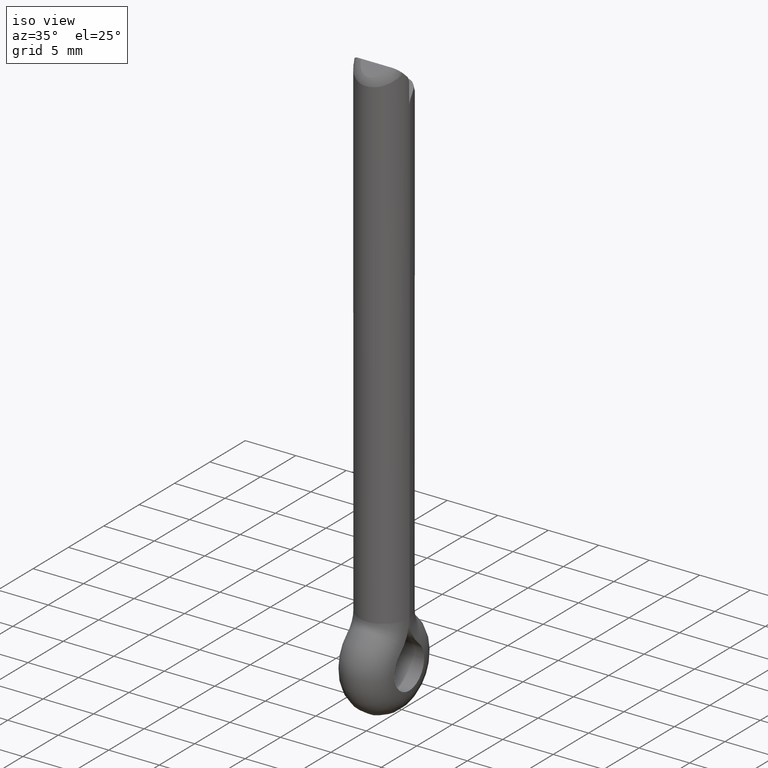
[diagram: clean part render]
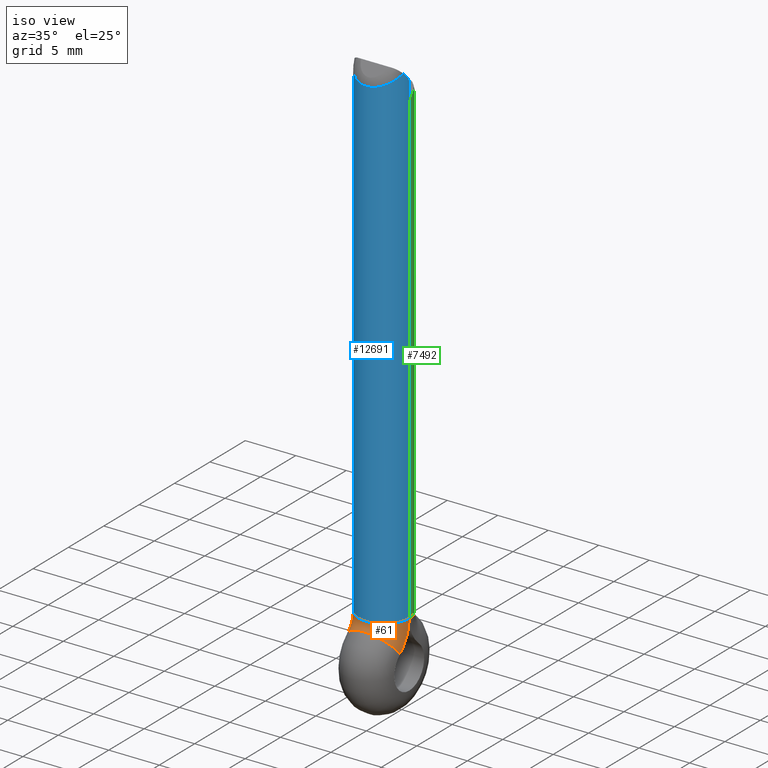
[diagram: same view with three faces highlighted in distinct colors, each labeled with its STEP entity id]
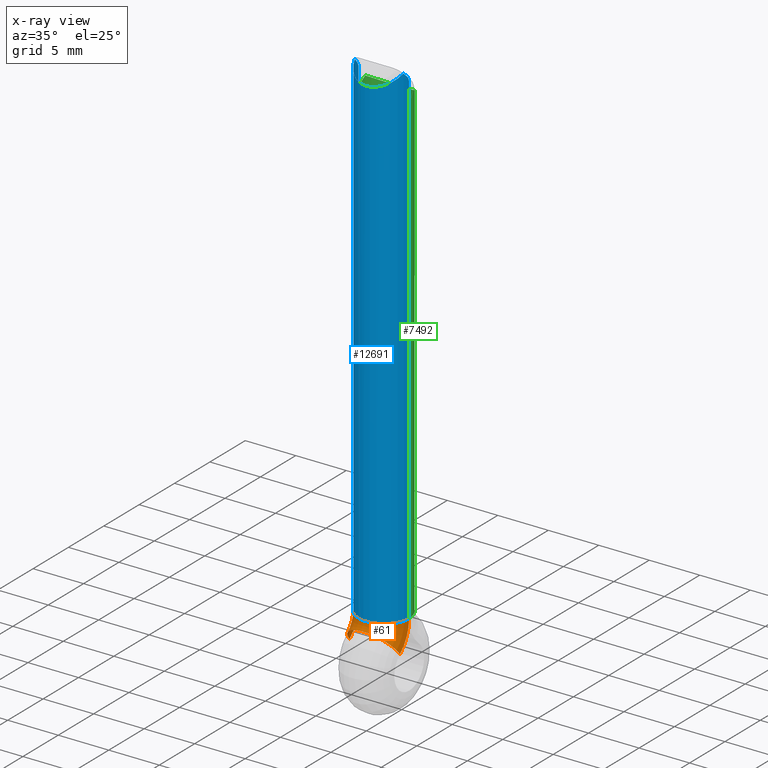
[diagram: x-ray of the same camera — body ghosted, the three highlighted faces saturated]
A machine part, iso view with three faces highlighted in distinct colors.
The next image is the same camera in x-ray (body ghosted, the three faces saturated) — at least one of them is partly hidden behind the body in this view.
Their STEP definitions:

[orange] entity #61 — the highlighted toroidal blend (fillet) surface has major radius 3.5 mm and minor (blend) radius 2.5 mm.
#61 = ADVANCED_FACE ( 'NONE', ( #11513 ), #279, .T. ) ;
#226 = EDGE_LOOP ( 'NONE', ( #14373, #13537, #14516, #1776 ) ) ;
#279 = TOROIDAL_SURFACE ( 'NONE', #13577, 3.500000000000003600, 2.500000000000000000 ) ;
#608 = CARTESIAN_POINT ( 'NONE',  ( -2.499979999919999400, -5.999999999999999100, -47.48984831638268400 ) ) ;
#1224 = VERTEX_POINT ( 'NONE', #10689 ) ;
#1776 = ORIENTED_EDGE ( 'NONE', *, *, #6703, .F. ) ;
#2296 = CARTESIAN_POINT ( 'NONE',  ( 0.0000000000000000000, -3.812499999999982700, -50.22203494068197200 ) ) ;
#2401 = DIRECTION ( 'NONE',  ( 1.000000000000000000, 0.0000000000000000000, 0.0000000000000000000 ) ) ;
#2456 = VERTEX_POINT ( 'NONE', #5722 ) ;
#3129 = DIRECTION ( 'NONE',  ( 1.000000000000000000, 0.0000000000000000000, 0.0000000000000000000 ) ) ;
#3191 = CARTESIAN_POINT ( 'NONE',  ( -2.499979999919999400, -2.509999999999998500, -47.48984831638266300 ) ) ;
#3539 = DIRECTION ( 'NONE',  ( 0.0000000000000000000, 0.0000000000000000000, -1.000000000000000000 ) ) ;
#3825 = AXIS2_PLACEMENT_3D ( 'NONE', #608, #3129, #9701 ) ;
#4124 = CARTESIAN_POINT ( 'NONE',  ( 2.499979999919999400, -2.509999999999998500, -47.48984831638266300 ) ) ;
#4719 = DIRECTION ( 'NONE',  ( 1.000000000000000000, 0.0000000000000000000, 0.0000000000000000000 ) ) ;
#4744 = AXIS2_PLACEMENT_3D ( 'NONE', #2296, #4923, #2401 ) ;
#4923 = DIRECTION ( 'NONE',  ( 0.0000000000000000000, -0.7806247497998088900, -0.6249999999999886800 ) ) ;
#5147 = EDGE_CURVE ( 'NONE', #2456, #12746, #15382, .T. ) ;
#5480 = CARTESIAN_POINT ( 'NONE',  ( 0.0000000000000000000, -5.999999999999999100, -47.48984831638268400 ) ) ;
#5722 = CARTESIAN_POINT ( 'NONE',  ( 2.499979999919999400, -3.818749999999974800, -50.21422869318397600 ) ) ;
#6479 = AXIS2_PLACEMENT_3D ( 'NONE', #12045, #13327, #14616 ) ;
#6701 = VERTEX_POINT ( 'NONE', #3191 ) ;
#6703 = EDGE_CURVE ( 'NONE', #1224, #6701, #15755, .T. ) ;
#7840 = DIRECTION ( 'NONE',  ( 0.0000000000000000000, 0.0000000000000000000, -1.000000000000000000 ) ) ;
#9057 = EDGE_CURVE ( 'NONE', #2456, #1224, #14701, .T. ) ;
#9701 = DIRECTION ( 'NONE',  ( 0.0000000000000000000, 0.0000000000000000000, -1.000000000000000000 ) ) ;
#10689 = CARTESIAN_POINT ( 'NONE',  ( -2.499979999919999400, -3.818749999999974800, -50.21422869318397600 ) ) ;
#11088 = EDGE_CURVE ( 'NONE', #12746, #6701, #15473, .T. ) ;
#11103 = CARTESIAN_POINT ( 'NONE',  ( 2.499979999919999400, -5.999999999999999100, -47.48984831638268400 ) ) ;
#11513 = FACE_OUTER_BOUND ( 'NONE', #226, .T. ) ;
#11640 = AXIS2_PLACEMENT_3D ( 'NONE', #11103, #4719, #3539 ) ;
#12045 = CARTESIAN_POINT ( 'NONE',  ( 0.0000000000000000000, -2.499999999999995100, -47.48984831638267000 ) ) ;
#12746 = VERTEX_POINT ( 'NONE', #4124 ) ;
#13327 = DIRECTION ( 'NONE',  ( 0.0000000000000000000, -1.598721155460225400E-014, -1.000000000000000000 ) ) ;
#13537 = ORIENTED_EDGE ( 'NONE', *, *, #5147, .T. ) ;
#13577 = AXIS2_PLACEMENT_3D ( 'NONE', #5480, #14443, #7840 ) ;
#14373 = ORIENTED_EDGE ( 'NONE', *, *, #9057, .F. ) ;
#14443 = DIRECTION ( 'NONE',  ( 1.000000000000000000, 0.0000000000000000000, 0.0000000000000000000 ) ) ;
#14516 = ORIENTED_EDGE ( 'NONE', *, *, #11088, .T. ) ;
#14616 = DIRECTION ( 'NONE',  ( 1.000000000000000000, 0.0000000000000000000, 0.0000000000000000000 ) ) ;
#14701 = CIRCLE ( 'NONE', #4744, 2.500000000000000000 ) ;
#15382 = CIRCLE ( 'NONE', #11640, 3.490000000000006900 ) ;
#15473 = CIRCLE ( 'NONE', #6479, 2.500000000000000000 ) ;
#15755 = CIRCLE ( 'NONE', #3825, 3.490000000000006900 ) ;

[blue] entity #12691 — the highlighted cylindrical surface (edge-blend (fillet) strip) has radius 2.5 mm, axis along (0, -0, 1).
#158 = CARTESIAN_POINT ( 'NONE',  ( -2.440020302457552000, -3.059681740000945300, 1.354681740000969000 ) ) ;
#408 = DIRECTION ( 'NONE',  ( 0.0000000000000000000, -1.000000000000000000, 0.0000000000000000000 ) ) ;
#863 = LINE ( 'NONE', #10646, #15699 ) ;
#1068 = EDGE_CURVE ( 'NONE', #15209, #12607, #9053, .T. ) ;
#2122 = CARTESIAN_POINT ( 'NONE',  ( -2.492941570271943100, -2.709835730078019800, 1.004835730078045300 ) ) ;
#2307 = EDGE_CURVE ( 'NONE', #6701, #3187, #863, .T. ) ;
#2321 = ORIENTED_EDGE ( 'NONE', *, *, #11088, .F. ) ;
#2354 = CYLINDRICAL_SURFACE ( 'NONE', #14963, 2.500000000000000400 ) ;
#2649 = CARTESIAN_POINT ( 'NONE',  ( 2.499979999919999400, -2.509999999999999300, 0.3907864376269318300 ) ) ;
#3035 = ORIENTED_EDGE ( 'NONE', *, *, #5055, .F. ) ;
#3187 = VERTEX_POINT ( 'NONE', #7090 ) ;
#3191 = CARTESIAN_POINT ( 'NONE',  ( -2.499979999919999400, -2.509999999999998500, -47.48984831638266300 ) ) ;
#3560 = VECTOR ( 'NONE', #9259, 1000.000000000000000 ) ;
#3605 = ORIENTED_EDGE ( 'NONE', *, *, #1068, .T. ) ;
#3610 = EDGE_CURVE ( 'NONE', #15712, #3187, #4200, .T. ) ;
#3745 = CARTESIAN_POINT ( 'NONE',  ( 2.481583304665959200, -2.802893218813452800, 1.097893218813475600 ) ) ;
#3836 = EDGE_CURVE ( 'NONE', #6269, #15045, #7889, .T. ) ;
#4055 = CARTESIAN_POINT ( 'NONE',  ( 2.492942233587890100, -2.709830295576583400, 1.004830295576660400 ) ) ;
#4124 = CARTESIAN_POINT ( 'NONE',  ( 2.499979999919999400, -2.509999999999998500, -47.48984831638266300 ) ) ;
#4152 = CARTESIAN_POINT ( 'NONE',  ( -2.465812959754761600, -2.932098569774297400, 1.227098569774320600 ) ) ;
#4200 = B_SPLINE_CURVE_WITH_KNOTS ( 'NONE', 3,
 ( #12261, #2122, #4690, #7272, #12428, #4642 ),
 .UNSPECIFIED., .F., .F.,
 ( 4, 2, 4 ),
 ( 7.818293051731876900E-019, 0.0003905280839846524200, 0.0007810561679693040700 ),
 .UNSPECIFIED. ) ;
#4206 = CARTESIAN_POINT ( 'NONE',  ( -2.481583304665959200, -2.802893218813452300, 1.097893218813475300 ) ) ;
#4260 = CARTESIAN_POINT ( 'NONE',  ( -2.481583304665959200, -2.802893218813452300, 1.097893218813475300 ) ) ;
#4642 = CARTESIAN_POINT ( 'NONE',  ( -2.499979999919999400, -2.509999999999999300, 0.3907864376269318300 ) ) ;
#4690 = CARTESIAN_POINT ( 'NONE',  ( -2.496777668008723200, -2.636460760914471000, 0.8948516854989014800 ) ) ;
#5055 = EDGE_CURVE ( 'NONE', #15712, #12607, #15094, .T. ) ;
#5334 = CARTESIAN_POINT ( 'NONE',  ( 2.481583304665959200, -2.802893218813452800, 1.097893218813475600 ) ) ;
#5366 = CARTESIAN_POINT ( 'NONE',  ( 2.499979999919999400, -2.509999999999998500, -47.48984831638266300 ) ) ;
#5575 = CARTESIAN_POINT ( 'NONE',  ( 0.0000000000000000000, -2.499999999999995100, -47.48984831638267000 ) ) ;
#6269 = VERTEX_POINT ( 'NONE', #14913 ) ;
#6477 = CARTESIAN_POINT ( 'NONE',  ( -2.404362253273410100, -3.184866523516812500, 1.479866523516836500 ) ) ;
#6479 = AXIS2_PLACEMENT_3D ( 'NONE', #12045, #13327, #14616 ) ;
#6701 = VERTEX_POINT ( 'NONE', #3191 ) ;
#7090 = CARTESIAN_POINT ( 'NONE',  ( -2.499979999919999400, -2.509999999999999300, 0.3907864376269318300 ) ) ;
#7272 = CARTESIAN_POINT ( 'NONE',  ( -2.500243165487229500, -2.536116148338797900, 0.6528986651324375500 ) ) ;
#7674 = CARTESIAN_POINT ( 'NONE',  ( 1.553312737629594100, -6.172647734625114100, -0.3128022031481190200 ) ) ;
#7889 = B_SPLINE_CURVE_WITH_KNOTS ( 'NONE', 3,
 ( #2649, #12960, #11669, #11731, #4055, #5334 ),
 .UNSPECIFIED., .F., .F.,
 ( 4, 2, 4 ),
 ( 0.0000000000000000000, 0.0003906063436695468600, 0.0007812126873390937200 ),
 .UNSPECIFIED. ) ;
#8588 = FACE_OUTER_BOUND ( 'NONE', #8837, .T. ) ;
#8671 = ORIENTED_EDGE ( 'NONE', *, *, #12024, .F. ) ;
#8837 = EDGE_LOOP ( 'NONE', ( #8671, #3605, #3035, #15326, #14602, #2321, #10804, #14187 ) ) ;
#8978 = CARTESIAN_POINT ( 'NONE',  ( -1.553312737629591400, -6.172647734625115800, -0.3128022031481201300 ) ) ;
#9040 = CARTESIAN_POINT ( 'NONE',  ( 2.465812959754762000, -2.932098569774297800, 1.227098569774320400 ) ) ;
#9053 =( BOUNDED_CURVE ( )  B_SPLINE_CURVE ( 3, ( #15348, #7674, #8978, #11537 ),
 .UNSPECIFIED., .F., .F. ) 
 B_SPLINE_CURVE_WITH_KNOTS ( ( 4, 4 ),
 ( 1.848290566995242500, 4.434894740184343000 ),
 .UNSPECIFIED. ) 
 CURVE ( )  GEOMETRIC_REPRESENTATION_ITEM ( )  RATIONAL_B_SPLINE_CURVE ( ( 1.000000000000000000, 0.5159644062711514800, 0.5159644062711514800, 1.000000000000000000 ) ) 
 REPRESENTATION_ITEM ( '' )  );
#9259 = DIRECTION ( 'NONE',  ( 0.0000000000000000000, -1.752605367556319000E-017, 1.000000000000000000 ) ) ;
#10597 = DIRECTION ( 'NONE',  ( 0.0000000000000000000, -1.752605367556319000E-017, 1.000000000000000000 ) ) ;
#10646 = CARTESIAN_POINT ( 'NONE',  ( -2.499979999919999400, -2.509999999999998500, -47.48984831638266300 ) ) ;
#10804 = ORIENTED_EDGE ( 'NONE', *, *, #12193, .T. ) ;
#11088 = EDGE_CURVE ( 'NONE', #12746, #6701, #15473, .T. ) ;
#11537 = CARTESIAN_POINT ( 'NONE',  ( -2.404362253273410100, -3.184866523516812500, 1.479866523516836500 ) ) ;
#11568 = LINE ( 'NONE', #5366, #3560 ) ;
#11669 = CARTESIAN_POINT ( 'NONE',  ( 2.500244264023082900, -2.535997536544627500, 0.6524794102366021600 ) ) ;
#11731 = CARTESIAN_POINT ( 'NONE',  ( 2.496786850888323100, -2.636281413438426900, 0.8945520996437736900 ) ) ;
#11744 = CARTESIAN_POINT ( 'NONE',  ( 2.404362253273410600, -3.184866523516811200, 1.479866523516835100 ) ) ;
#11972 = DIRECTION ( 'NONE',  ( 0.0000000000000000000, -1.752605367556319000E-017, 1.000000000000000000 ) ) ;
#12024 = EDGE_CURVE ( 'NONE', #15209, #15045, #12904, .T. ) ;
#12045 = CARTESIAN_POINT ( 'NONE',  ( 0.0000000000000000000, -2.499999999999995100, -47.48984831638267000 ) ) ;
#12193 = EDGE_CURVE ( 'NONE', #12746, #6269, #11568, .T. ) ;
#12261 = CARTESIAN_POINT ( 'NONE',  ( -2.481583304665959200, -2.802893218813452300, 1.097893218813475300 ) ) ;
#12428 = CARTESIAN_POINT ( 'NONE',  ( -2.499979999919999400, -2.509999999999999300, 0.5228374756624902800 ) ) ;
#12607 = VERTEX_POINT ( 'NONE', #6477 ) ;
#12620 = CARTESIAN_POINT ( 'NONE',  ( 2.404362253273410600, -3.184866523516811200, 1.479866523516835100 ) ) ;
#12691 = ADVANCED_FACE ( 'NONE', ( #8588 ), #2354, .T. ) ;
#12746 = VERTEX_POINT ( 'NONE', #4124 ) ;
#12904 =( BOUNDED_CURVE ( )  B_SPLINE_CURVE ( 3, ( #12620, #15199, #9040, #15517 ),
 .UNSPECIFIED., .F., .F. ) 
 B_SPLINE_CURVE_WITH_KNOTS ( ( 4, 4 ),
 ( 1.293302086594551500, 1.449340650918129700 ),
 .UNSPECIFIED. ) 
 CURVE ( )  GEOMETRIC_REPRESENTATION_ITEM ( )  RATIONAL_B_SPLINE_CURVE ( ( 1.000000000000000000, 0.9979720262079349000, 0.9979720262079349000, 1.000000000000000000 ) ) 
 REPRESENTATION_ITEM ( '' )  );
#12960 = CARTESIAN_POINT ( 'NONE',  ( 2.499979999919999900, -2.509999999999999300, 0.5228574918536135200 ) ) ;
#13003 = CARTESIAN_POINT ( 'NONE',  ( -2.404362253273410100, -3.184866523516812500, 1.479866523516836500 ) ) ;
#13327 = DIRECTION ( 'NONE',  ( 0.0000000000000000000, -1.598721155460225400E-014, -1.000000000000000000 ) ) ;
#14187 = ORIENTED_EDGE ( 'NONE', *, *, #3836, .T. ) ;
#14602 = ORIENTED_EDGE ( 'NONE', *, *, #2307, .F. ) ;
#14616 = DIRECTION ( 'NONE',  ( 1.000000000000000000, 0.0000000000000000000, 0.0000000000000000000 ) ) ;
#14913 = CARTESIAN_POINT ( 'NONE',  ( 2.499979999919999400, -2.509999999999999300, 0.3907864376269318300 ) ) ;
#14963 = AXIS2_PLACEMENT_3D ( 'NONE', #5575, #11972, #408 ) ;
#15045 = VERTEX_POINT ( 'NONE', #3745 ) ;
#15094 =( BOUNDED_CURVE ( )  B_SPLINE_CURVE ( 3, ( #4206, #4152, #158, #13003 ),
 .UNSPECIFIED., .F., .T. ) 
 B_SPLINE_CURVE_WITH_KNOTS ( ( 4, 4 ),
 ( 4.833844656261456800, 4.989883220585035400 ),
 .UNSPECIFIED. ) 
 CURVE ( )  GEOMETRIC_REPRESENTATION_ITEM ( )  RATIONAL_B_SPLINE_CURVE ( ( 1.000000000000000000, 0.9979720262079349000, 0.9979720262079349000, 1.000000000000000000 ) ) 
 REPRESENTATION_ITEM ( '' )  );
#15199 = CARTESIAN_POINT ( 'NONE',  ( 2.440020302457552400, -3.059681740000944400, 1.354681740000968100 ) ) ;
#15209 = VERTEX_POINT ( 'NONE', #11744 ) ;
#15326 = ORIENTED_EDGE ( 'NONE', *, *, #3610, .T. ) ;
#15348 = CARTESIAN_POINT ( 'NONE',  ( 2.404362253273410600, -3.184866523516811200, 1.479866523516835100 ) ) ;
#15473 = CIRCLE ( 'NONE', #6479, 2.500000000000000000 ) ;
#15517 = CARTESIAN_POINT ( 'NONE',  ( 2.481583304665959200, -2.802893218813452800, 1.097893218813475600 ) ) ;
#15699 = VECTOR ( 'NONE', #10597, 1000.000000000000000 ) ;
#15712 = VERTEX_POINT ( 'NONE', #4260 ) ;

[green] entity #7492 — the highlighted cylindrical surface (edge-blend (fillet) strip) has radius 2.5 mm, axis along (-0, -0, 1).
#4 = VERTEX_POINT ( 'NONE', #14389 ) ;
#187 = CARTESIAN_POINT ( 'NONE',  ( -2.481583304665959700, -2.197106781186549000, -0.9521067811865536700 ) ) ;
#619 = CARTESIAN_POINT ( 'NONE',  ( 2.499979999919999400, -2.490000000000000200, -47.48984831638268400 ) ) ;
#815 = DIRECTION ( 'NONE',  ( 1.000000000000000000, 0.0000000000000000000, 0.0000000000000000000 ) ) ;
#862 = CARTESIAN_POINT ( 'NONE',  ( -2.431110771635006000, -1.897670651406385000, -0.6526706514063884700 ) ) ;
#1118 = CARTESIAN_POINT ( 'NONE',  ( -2.385674596319955500, -1.752633476483180800, -0.5076334764831839100 ) ) ;
#1504 = B_SPLINE_CURVE_WITH_KNOTS ( 'NONE', 3,
 ( #7984, #11746, #4070, #14480, #1604, #187 ),
 .UNSPECIFIED., .F., .F.,
 ( 4, 2, 4 ),
 ( 1.361785551346922200E-017, 0.0003906063436695535300, 0.0007812126873390935100 ),
 .UNSPECIFIED. ) ;
#1604 = CARTESIAN_POINT ( 'NONE',  ( -2.492942233587890600, -2.290169704423414800, -1.045169704423369000 ) ) ;
#2043 = CARTESIAN_POINT ( 'NONE',  ( 2.499979999919999400, -2.490000000000000200, -47.48984831638268400 ) ) ;
#2348 = EDGE_CURVE ( 'NONE', #5612, #8225, #15296, .T. ) ;
#2396 = VERTEX_POINT ( 'NONE', #619 ) ;
#2736 = CIRCLE ( 'NONE', #11118, 2.500000000000000000 ) ;
#2751 =( BOUNDED_CURVE ( )  B_SPLINE_CURVE ( 3, ( #7337, #11355, #12541, #6107 ),
 .UNSPECIFIED., .F., .F. ) 
 B_SPLINE_CURVE_WITH_KNOTS ( ( 4, 4 ),
 ( 1.267207734718436500, 1.449340650918132400 ),
 .UNSPECIFIED. ) 
 CURVE ( )  GEOMETRIC_REPRESENTATION_ITEM ( )  RATIONAL_B_SPLINE_CURVE ( ( 1.000000000000000000, 0.9972375433056852600, 0.9972375433056852600, 1.000000000000000000 ) ) 
 REPRESENTATION_ITEM ( '' )  );
#2787 = VERTEX_POINT ( 'NONE', #9364 ) ;
#3249 = CARTESIAN_POINT ( 'NONE',  ( 2.499979999919999000, -2.490000000000000200, -1.527162524337539300 ) ) ;
#3444 = CARTESIAN_POINT ( 'NONE',  ( -2.385674596319955500, -1.752633476483180800, -0.5076334764831839100 ) ) ;
#3735 = CARTESIAN_POINT ( 'NONE',  ( -2.499979999919999400, -2.490000000000000200, -47.48984831638268400 ) ) ;
#4070 = CARTESIAN_POINT ( 'NONE',  ( -2.500244264023082900, -2.464002463455369000, -1.397520589763421100 ) ) ;
#4096 = CARTESIAN_POINT ( 'NONE',  ( -2.499979999919999400, -2.490000000000000200, -47.48984831638268400 ) ) ;
#4186 = B_SPLINE_CURVE_WITH_KNOTS ( 'NONE', 3,
 ( #16081, #13446, #14722, #8346, #3249, #14780 ),
 .UNSPECIFIED., .F., .F.,
 ( 4, 2, 4 ),
 ( 2.168404344971008900E-018, 0.0003905280839846602200, 0.0007810561679693182700 ),
 .UNSPECIFIED. ) ;
#4523 =( BOUNDED_CURVE ( )  B_SPLINE_CURVE ( 3, ( #8663, #13913, #862, #3444 ),
 .UNSPECIFIED., .F., .F. ) 
 B_SPLINE_CURVE_WITH_KNOTS ( ( 4, 4 ),
 ( 4.833844656261454100, 5.015977572461149900 ),
 .UNSPECIFIED. ) 
 CURVE ( )  GEOMETRIC_REPRESENTATION_ITEM ( )  RATIONAL_B_SPLINE_CURVE ( ( 1.000000000000000000, 0.9972375433056852600, 0.9972375433056852600, 1.000000000000000000 ) ) 
 REPRESENTATION_ITEM ( '' )  );
#4572 = ORIENTED_EDGE ( 'NONE', *, *, #4740, .T. ) ;
#4740 = EDGE_CURVE ( 'NONE', #2396, #5612, #2736, .T. ) ;
#5221 = VERTEX_POINT ( 'NONE', #1118 ) ;
#5282 = VERTEX_POINT ( 'NONE', #13949 ) ;
#5370 = EDGE_LOOP ( 'NONE', ( #6340, #8190, #15413, #4572, #13257, #7164, #14235, #5398 ) ) ;
#5398 = ORIENTED_EDGE ( 'NONE', *, *, #8157, .T. ) ;
#5612 = VERTEX_POINT ( 'NONE', #3735 ) ;
#6107 = CARTESIAN_POINT ( 'NONE',  ( 2.481583304665960100, -2.197106781186550300, -0.9521067811865549000 ) ) ;
#6340 = ORIENTED_EDGE ( 'NONE', *, *, #7900, .T. ) ;
#7164 = ORIENTED_EDGE ( 'NONE', *, *, #13445, .T. ) ;
#7203 = DIRECTION ( 'NONE',  ( -0.0000000000000000000, -0.0000000000000000000, 1.000000000000000000 ) ) ;
#7324 = CYLINDRICAL_SURFACE ( 'NONE', #15051, 2.500000000000000000 ) ;
#7337 = CARTESIAN_POINT ( 'NONE',  ( 2.385674596319955500, -1.752633476483181200, -0.5076334764831843500 ) ) ;
#7492 = ADVANCED_FACE ( 'NONE', ( #8313 ), #7324, .T. ) ;
#7900 = EDGE_CURVE ( 'NONE', #2787, #4, #2751, .T. ) ;
#7984 = CARTESIAN_POINT ( 'NONE',  ( -2.499979999919999400, -2.490000000000000200, -1.659213562373113000 ) ) ;
#8093 = CARTESIAN_POINT ( 'NONE',  ( 1.493012529392600400, 1.096840174204281000, -2.217317666895654200 ) ) ;
#8157 = EDGE_CURVE ( 'NONE', #5221, #2787, #16430, .T. ) ;
#8190 = ORIENTED_EDGE ( 'NONE', *, *, #11172, .T. ) ;
#8225 = VERTEX_POINT ( 'NONE', #13548 ) ;
#8313 = FACE_OUTER_BOUND ( 'NONE', #5370, .T. ) ;
#8346 = CARTESIAN_POINT ( 'NONE',  ( 2.500243165487230800, -2.463883851661203400, -1.397101334867602700 ) ) ;
#8663 = CARTESIAN_POINT ( 'NONE',  ( -2.481583304665959700, -2.197106781186549000, -0.9521067811865536700 ) ) ;
#8820 = DIRECTION ( 'NONE',  ( 0.0000000000000000000, 0.0000000000000000000, 1.000000000000000000 ) ) ;
#8822 = VERTEX_POINT ( 'NONE', #12990 ) ;
#9364 = CARTESIAN_POINT ( 'NONE',  ( 2.385674596319955500, -1.752633476483181200, -0.5076334764831843500 ) ) ;
#9571 = CARTESIAN_POINT ( 'NONE',  ( 0.0000000000000000000, -2.500000000000000000, -47.48984831638268400 ) ) ;
#9598 = LINE ( 'NONE', #2043, #15588 ) ;
#9743 = DIRECTION ( 'NONE',  ( -0.0000000000000000000, -0.0000000000000000000, 1.000000000000000000 ) ) ;
#10908 = CARTESIAN_POINT ( 'NONE',  ( -1.493012529392600700, 1.096840174204280800, -2.217317666895653800 ) ) ;
#11118 = AXIS2_PLACEMENT_3D ( 'NONE', #14009, #8820, #13903 ) ;
#11172 = EDGE_CURVE ( 'NONE', #4, #8822, #4186, .T. ) ;
#11355 = CARTESIAN_POINT ( 'NONE',  ( 2.431110771635006000, -1.897670651406385000, -0.6526706514063884700 ) ) ;
#11746 = CARTESIAN_POINT ( 'NONE',  ( -2.499979999919999000, -2.490000000000000700, -1.527142508146419600 ) ) ;
#11880 = DIRECTION ( 'NONE',  ( -0.0000000000000000000, -0.0000000000000000000, 1.000000000000000000 ) ) ;
#11988 = EDGE_CURVE ( 'NONE', #2396, #8822, #9598, .T. ) ;
#12541 = CARTESIAN_POINT ( 'NONE',  ( 2.463168900275745500, -2.046238832808116900, -0.8012388328081210300 ) ) ;
#12990 = CARTESIAN_POINT ( 'NONE',  ( 2.499979999919999400, -2.490000000000000200, -1.659213562373113000 ) ) ;
#13257 = ORIENTED_EDGE ( 'NONE', *, *, #2348, .T. ) ;
#13281 = VECTOR ( 'NONE', #11880, 1000.000000000000000 ) ;
#13433 = CARTESIAN_POINT ( 'NONE',  ( -2.385674596319955500, -1.752633476483180800, -0.5076334764831839100 ) ) ;
#13445 = EDGE_CURVE ( 'NONE', #8225, #5282, #1504, .T. ) ;
#13446 = CARTESIAN_POINT ( 'NONE',  ( 2.492941570271944900, -2.290164269921982000, -1.045164269921986500 ) ) ;
#13548 = CARTESIAN_POINT ( 'NONE',  ( -2.499979999919999400, -2.490000000000000200, -1.659213562373113000 ) ) ;
#13903 = DIRECTION ( 'NONE',  ( 1.000000000000000000, 0.0000000000000000000, 0.0000000000000000000 ) ) ;
#13913 = CARTESIAN_POINT ( 'NONE',  ( -2.463168900275745500, -2.046238832808116900, -0.8012388328081210300 ) ) ;
#13949 = CARTESIAN_POINT ( 'NONE',  ( -2.481583304665959700, -2.197106781186549000, -0.9521067811865536700 ) ) ;
#14009 = CARTESIAN_POINT ( 'NONE',  ( 0.0000000000000000000, -2.500000000000000000, -47.48984831638268400 ) ) ;
#14235 = ORIENTED_EDGE ( 'NONE', *, *, #16340, .T. ) ;
#14389 = CARTESIAN_POINT ( 'NONE',  ( 2.481583304665960100, -2.197106781186550300, -0.9521067811865549000 ) ) ;
#14480 = CARTESIAN_POINT ( 'NONE',  ( -2.496786850888322200, -2.363718586561569500, -1.155447900356253700 ) ) ;
#14722 = CARTESIAN_POINT ( 'NONE',  ( 2.496777668008722400, -2.363539239085532100, -1.155148314501135000 ) ) ;
#14780 = CARTESIAN_POINT ( 'NONE',  ( 2.499979999919999400, -2.490000000000000200, -1.659213562373113000 ) ) ;
#15051 = AXIS2_PLACEMENT_3D ( 'NONE', #9571, #9743, #815 ) ;
#15296 = LINE ( 'NONE', #4096, #13281 ) ;
#15413 = ORIENTED_EDGE ( 'NONE', *, *, #11988, .F. ) ;
#15588 = VECTOR ( 'NONE', #7203, 1000.000000000000000 ) ;
#16013 = CARTESIAN_POINT ( 'NONE',  ( 2.385674596319955500, -1.752633476483181200, -0.5076334764831843500 ) ) ;
#16081 = CARTESIAN_POINT ( 'NONE',  ( 2.481583304665960100, -2.197106781186550300, -0.9521067811865549000 ) ) ;
#16340 = EDGE_CURVE ( 'NONE', #5282, #5221, #4523, .T. ) ;
#16430 =( BOUNDED_CURVE ( )  B_SPLINE_CURVE ( 3, ( #13433, #10908, #8093, #16013 ),
 .UNSPECIFIED., .F., .F. ) 
 B_SPLINE_CURVE_WITH_KNOTS ( ( 4, 4 ),
 ( 1.874384918871355300, 4.408800388308231200 ),
 .UNSPECIFIED. ) 
 CURVE ( )  GEOMETRIC_REPRESENTATION_ITEM ( )  RATIONAL_B_SPLINE_CURVE ( ( 1.000000000000000000, 0.5326310729378173100, 0.5326310729378173100, 1.000000000000000000 ) ) 
 REPRESENTATION_ITEM ( '' )  );